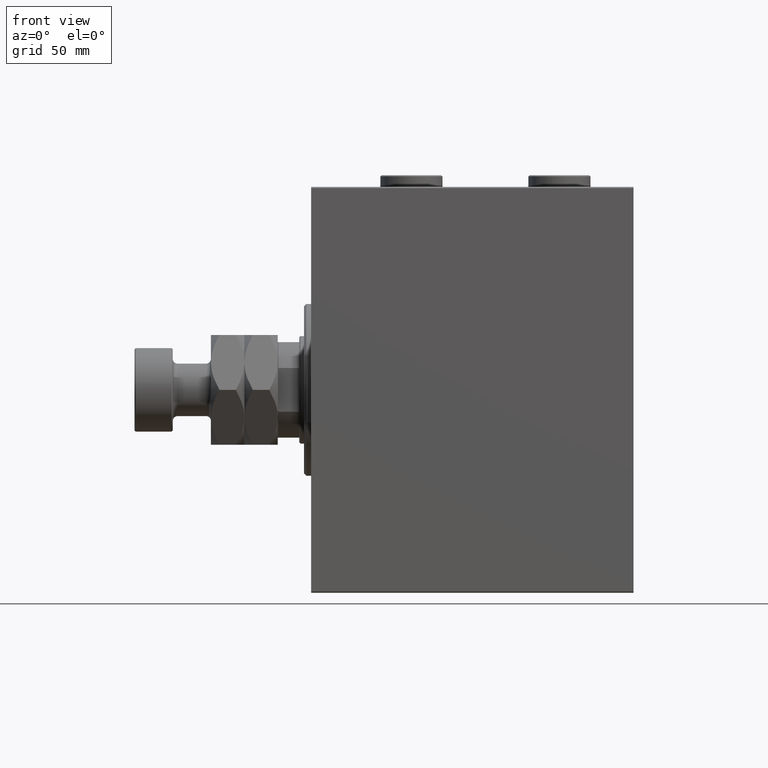
[diagram: clean part render]
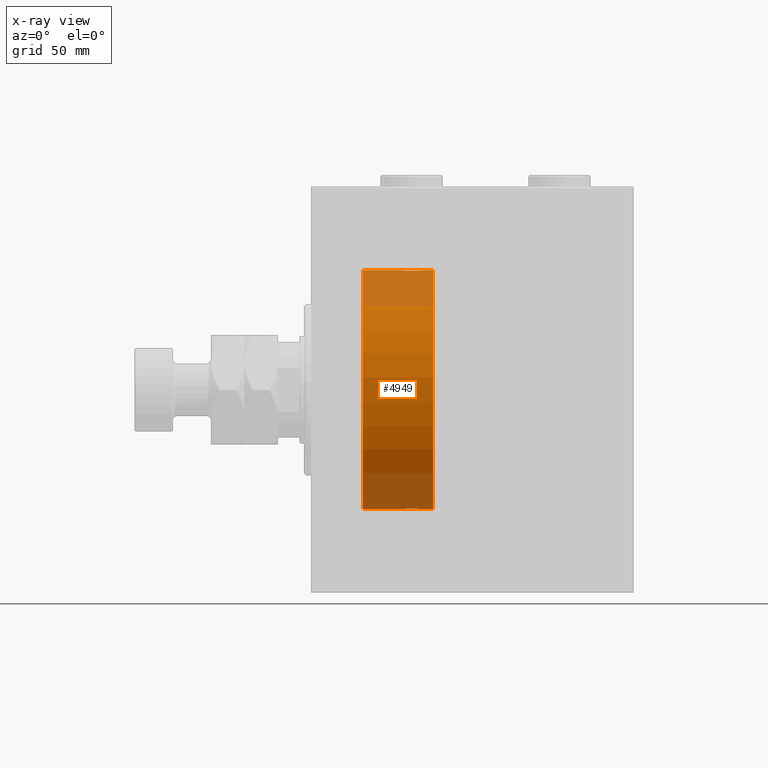
[diagram: x-ray — body ghosted, one internal face saturated and labeled with its STEP entity id]
A machine part, front view, then the same camera in x-ray: the body is ghosted and one INTERNAL B-rep face — a face not visible from any outside direction — is saturated and labeled: STEP entity #4949.
In plain terms, the highlighted cylindrical surface (partial cylindrical patch) has radius 50 mm, axis along (-1, -0, -0).
Its self-contained STEP definition (entity closure, byte-faithful):
#94 = DIRECTION ( 'NONE',  ( -1.000000000000000000, 0.000000000000000000, 0.000000000000000000 ) ) ;
#370 = CARTESIAN_POINT ( 'NONE',  ( 46.03079796155343928, -1.375411031076041901, 49.98173289062310687 ) ) ;
#804 = ORIENTED_EDGE ( 'NONE', *, *, #28610, .T. ) ;
#1781 = LINE ( 'NONE', #30676, #11615 ) ;
#2200 = CARTESIAN_POINT ( 'NONE',  ( 40.11782950515556934, -3.820681512513366851, -49.85392475515399724 ) ) ;
#2430 = CARTESIAN_POINT ( 'NONE',  ( 43.10323296034215446, -4.113647494206469801, -49.83052139214892406 ) ) ;
#2965 = CARTESIAN_POINT ( 'NONE',  ( 37.74999999999999289, -0.2773743941468536645, 50.00000000000000000 ) ) ;
#3678 = CARTESIAN_POINT ( 'NONE',  ( 43.36710647554575360, -4.033756670430847180, 49.83713703490975178 ) ) ;
#4383 = CARTESIAN_POINT ( 'NONE',  ( 44.58820214676200777, -3.382416624899779123, 49.88570010427956447 ) ) ;
#4722 = DIRECTION ( 'NONE',  ( -1.000000000000000000, -0.000000000000000000, -0.000000000000000000 ) ) ;
#4949 = ADVANCED_FACE ( 'NONE', ( #46224 ), #10426, .F. ) ;
#5121 = VERTEX_POINT ( 'NONE', #18230 ) ;
#5759 = CARTESIAN_POINT ( 'NONE',  ( 46.03272642097310552, -1.369753890039644872, -49.98188917176551627 ) ) ;
#6419 = DIRECTION ( 'NONE',  ( 0.000000000000000000, 0.000000000000000000, 1.000000000000000000 ) ) ;
#7242 = CARTESIAN_POINT ( 'NONE',  ( 45.81839248987871116, -1.886522330773416911, 49.96505190380066352 ) ) ;
#7465 = CARTESIAN_POINT ( 'NONE',  ( 46.25000000000000000, -1.456404791334935357E-15, 50.00000000000000000 ) ) ;
#7742 = CARTESIAN_POINT ( 'NONE',  ( 21.60000000000000142, 0.000000000000000000, 0.000000000000000000 ) ) ;
#7802 = LINE ( 'NONE', #36482, #17295 ) ;
#8161 = CARTESIAN_POINT ( 'NONE',  ( 38.79696438048011942, -2.807099414226279510, 49.92152599098507437 ) ) ;
#8290 = CARTESIAN_POINT ( 'NONE',  ( 51.00000000000000000, 0.000000000000000000, 50.00000000000000000 ) ) ;
#8392 = EDGE_CURVE ( 'NONE', #33266, #36976, #16502, .T. ) ;
#9306 = CARTESIAN_POINT ( 'NONE',  ( 38.31397167878049714, -2.133925816755172455, -49.95498245321557818 ) ) ;
#9543 = CARTESIAN_POINT ( 'NONE',  ( 45.68937155679385853, -2.128188802142354508, -49.95522967821975158 ) ) ;
#9761 = CARTESIAN_POINT ( 'NONE',  ( 45.37881717263738324, -2.593114840406115729, -49.93325460257640458 ) ) ;
#9834 = EDGE_CURVE ( 'NONE', #33266, #22024, #7802, .T. ) ;
#9997 = CARTESIAN_POINT ( 'NONE',  ( 39.41179785323798512, -3.382416624899766244, -49.88570010427955026 ) ) ;
#10426 = CYLINDRICAL_SURFACE ( 'NONE', #21216, 50.00000000000000000 ) ;
#10678 = CARTESIAN_POINT ( 'NONE',  ( 37.75000000000000711, 3.968053759906218216E-15, -50.00000000000000000 ) ) ;
#10689 = VECTOR ( 'NONE', #37207, 1000.000000000000000 ) ;
#11021 = CARTESIAN_POINT ( 'NONE',  ( 42.27724927037918690, -4.250219976861644433, 49.81902879621014080 ) ) ;
#11615 = VECTOR ( 'NONE', #45155, 1000.000000000000000 ) ;
#11929 = CARTESIAN_POINT ( 'NONE',  ( 46.25000000000000000, 6.123233970928975205E-15, -50.00000000000000000 ) ) ;
#12858 = CARTESIAN_POINT ( 'NONE',  ( 41.44591435119851752, -4.222816005855191790, -49.82138837911247720 ) ) ;
#13218 = EDGE_CURVE ( 'NONE', #22024, #31138, #31904, .T. ) ;
#13326 = CARTESIAN_POINT ( 'NONE',  ( 42.28395287026697247, -4.249777379711388470, -49.81906655360197789 ) ) ;
#13500 = DIRECTION ( 'NONE',  ( -1.000000000000000000, -0.000000000000000000, -0.000000000000000000 ) ) ;
#13774 = CARTESIAN_POINT ( 'NONE',  ( 45.82100581985224608, -1.881229021238117749, -49.96525240872482954 ) ) ;
#13974 = CARTESIAN_POINT ( 'NONE',  ( 51.00000000000000000, 0.000000000000000000, 0.000000000000000000 ) ) ;
#14323 = CARTESIAN_POINT ( 'NONE',  ( 44.80697831839310652, -3.203153387937322183, 49.89767833571684719 ) ) ;
#14546 = VECTOR ( 'NONE', #45191, 1000.000000000000000 ) ;
#14808 = CARTESIAN_POINT ( 'NONE',  ( 38.62118282736263097, -2.593114840406127275, 49.93325460257640458 ) ) ;
#16402 = CARTESIAN_POINT ( 'NONE',  ( 43.37333436579038448, -4.031616700143171528, -49.83731072121799599 ) ) ;
#16502 = CIRCLE ( 'NONE', #34686, 50.00000000000000000 ) ;
#16635 = CARTESIAN_POINT ( 'NONE',  ( 39.87368355124921493, -3.690299572754706325, -49.86386974736159772 ) ) ;
#16964 = AXIS2_PLACEMENT_3D ( 'NONE', #7742, #44479, #33090 ) ;
#17295 = VECTOR ( 'NONE', #4722, 1000.000000000000000 ) ;
#17316 = CARTESIAN_POINT ( 'NONE',  ( 44.59312720885954917, -3.378657745070611895, -49.88595615988430154 ) ) ;
#17474 = EDGE_CURVE ( 'NONE', #45451, #21796, #33947, .T. ) ;
#17874 = CARTESIAN_POINT ( 'NONE',  ( 38.31062844320614857, -2.128188802142364722, 49.95522967821975158 ) ) ;
#18106 = CARTESIAN_POINT ( 'NONE',  ( 45.37519984081966840, -2.597781786597462172, 49.93300953359122474 ) ) ;
#18128 = CARTESIAN_POINT ( 'NONE',  ( 21.60000000000000142, 6.123233995736766085E-15, -50.00000000000000000 ) ) ;
#18230 = CARTESIAN_POINT ( 'NONE',  ( 21.60000000000000142, 0.000000000000000000, 50.00000000000000000 ) ) ;
#18581 = CARTESIAN_POINT ( 'NONE',  ( 37.96727357902688738, -1.369753890039652200, 49.98188917176553048 ) ) ;
#18805 = CARTESIAN_POINT ( 'NONE',  ( 41.44002132304352415, -4.222042462213121183, 49.82145436824653473 ) ) ;
#19301 = ORIENTED_EDGE ( 'NONE', *, *, #21958, .T. ) ;
#19718 = CARTESIAN_POINT ( 'NONE',  ( 46.22310752799001676, -0.5531336717328987351, -49.99769193709645521 ) ) ;
#20139 = EDGE_CURVE ( 'NONE', #36976, #21796, #22967, .T. ) ;
#20649 = CARTESIAN_POINT ( 'NONE',  ( 40.63289352445425351, -4.033756670430834745, -49.83713703490973757 ) ) ;
#20881 = EDGE_LOOP ( 'NONE', ( #23328, #30254, #28799, #19301, #804, #28042, #38951, #44825 ) ) ;
#21107 = CARTESIAN_POINT ( 'NONE',  ( 39.19302168160690769, -3.203153387937303087, -49.89767833571684008 ) ) ;
#21216 = AXIS2_PLACEMENT_3D ( 'NONE', #13974, #13500, #6419 ) ;
#21796 = VERTEX_POINT ( 'NONE', #41178 ) ;
#21958 = EDGE_CURVE ( 'NONE', #31138, #45043, #45646, .T. ) ;
#22024 = VERTEX_POINT ( 'NONE', #35913 ) ;
#22129 = CARTESIAN_POINT ( 'NONE',  ( 43.88217049484444487, -3.820681512513379730, 49.85392475515401145 ) ) ;
#22369 = CARTESIAN_POINT ( 'NONE',  ( 39.40687279114044372, -3.378657745070624774, 49.88595615988428733 ) ) ;
#22591 = CARTESIAN_POINT ( 'NONE',  ( 46.22242635520781562, -0.5587117664567141651, 49.99763378604805553 ) ) ;
#22967 = LINE ( 'NONE', #8290, #10689 ) ;
#23328 = ORIENTED_EDGE ( 'NONE', *, *, #8392, .F. ) ;
#24199 = CARTESIAN_POINT ( 'NONE',  ( 38.18160751012128884, -1.886522330773408695, -49.96505190380065642 ) ) ;
#24431 = CIRCLE ( 'NONE', #16964, 50.00000000000000000 ) ;
#24440 = CARTESIAN_POINT ( 'NONE',  ( 37.96920203844656783, -1.375411031076034130, -49.98173289062310687 ) ) ;
#24512 = CARTESIAN_POINT ( 'NONE',  ( 37.75000000000000711, -2.480770331693776875E-23, 50.00000000000000000 ) ) ;
#24671 = CARTESIAN_POINT ( 'NONE',  ( 40.90262382120962315, -4.115209769591094968, -49.83039196709103891 ) ) ;
#24718 = CARTESIAN_POINT ( 'NONE',  ( 51.00000000000000000, 0.000000000000000000, 0.000000000000000000 ) ) ;
#24897 = EDGE_CURVE ( 'NONE', #45451, #5121, #1781, .T. ) ;
#24899 = CARTESIAN_POINT ( 'NONE',  ( 51.00000000000000000, 0.000000000000000000, 50.00000000000000000 ) ) ;
#25458 = CARTESIAN_POINT ( 'NONE',  ( 41.71604712973302043, -4.249777379711404457, 49.81906655360197789 ) ) ;
#27297 = CARTESIAN_POINT ( 'NONE',  ( 37.88750298919665482, -1.108337267831482009, -49.98846998601261760 ) ) ;
#27764 = CARTESIAN_POINT ( 'NONE',  ( 41.72275072962082021, -4.250219976861628446, -49.81902879621016211 ) ) ;
#28042 = ORIENTED_EDGE ( 'NONE', *, *, #24897, .F. ) ;
#28610 = EDGE_CURVE ( 'NONE', #45043, #5121, #24431, .T. ) ;
#28776 = CARTESIAN_POINT ( 'NONE',  ( 46.25000000000001421, -0.2808785465865648034, 50.00000000000001421 ) ) ;
#28799 = ORIENTED_EDGE ( 'NONE', *, *, #13218, .T. ) ;
#29256 = CARTESIAN_POINT ( 'NONE',  ( 40.62666563420964394, -4.031616700143185739, 49.83731072121799599 ) ) ;
#30254 = ORIENTED_EDGE ( 'NONE', *, *, #9834, .T. ) ;
#30404 = CARTESIAN_POINT ( 'NONE',  ( 46.11431913306007147, -1.101350136471736407, -49.98862054280446898 ) ) ;
#30676 = CARTESIAN_POINT ( 'NONE',  ( 51.00000000000000000, 0.000000000000000000, 50.00000000000000000 ) ) ;
#30711 = CARTESIAN_POINT ( 'NONE',  ( 51.00000000000000000, 6.123233995736766085E-15, -50.00000000000000000 ) ) ;
#31096 = CARTESIAN_POINT ( 'NONE',  ( 37.77757364479219149, -0.5587117664567073927, -49.99763378604802000 ) ) ;
#31138 = VERTEX_POINT ( 'NONE', #10678 ) ;
#31904 = B_SPLINE_CURVE_WITH_KNOTS ( 'NONE', 3,
 ( #11929, #37749, #19718, #30404, #5759, #13774, #9543, #9761, #35592, #42729, #17316, #34666, #38682, #16402, #2430, #46264, #13326, #27764, #12858, #24671, #20649, #2200, #16635, #9997, #21107, #35131, #42256, #9306, #24199, #24440, #27297, #31096, #41793, #34898 ),
 .UNSPECIFIED., .F., .F.,
 ( 4, 2, 2, 2, 2, 2, 2, 2, 2, 2, 2, 2, 2, 2, 2, 2, 4 ),
 ( 0.01329343152928757349, 0.01412407817529635554, 0.01495472482130513932, 0.01578537146731392310, 0.01661601811332270515, 0.01744666475933148719, 0.01827731140534026924, 0.01910795805134905129, 0.01993860469735783680, 0.02076925134336661885, 0.02159989798937540090, 0.02243054463538418294, 0.02326119128139296499, 0.02409183792740174704, 0.02492248457341052909, 0.02575313121941931460, 0.02658377786542809665 ),
 .UNSPECIFIED. ) ;
#32337 = CARTESIAN_POINT ( 'NONE',  ( 44.12631644875080639, -3.690299572754719204, 49.86386974736159772 ) ) ;
#32571 = CARTESIAN_POINT ( 'NONE',  ( 45.68602832121950286, -2.133925816755179117, 49.95498245321557818 ) ) ;
#33052 = CARTESIAN_POINT ( 'NONE',  ( 40.89676703965783133, -4.113647494206481348, 49.83052139214890985 ) ) ;
#33090 = DIRECTION ( 'NONE',  ( 0.000000000000000000, 0.000000000000000000, 1.000000000000000000 ) ) ;
#33266 = VERTEX_POINT ( 'NONE', #35435 ) ;
#33280 = CARTESIAN_POINT ( 'NONE',  ( 42.55408564880149669, -4.222816005855207777, 49.82138837911247009 ) ) ;
#33713 = CARTESIAN_POINT ( 'NONE',  ( 37.75000000000000711, -2.480770331693776875E-23, 50.00000000000000000 ) ) ;
#33947 = B_SPLINE_CURVE_WITH_KNOTS ( 'NONE', 3,
 ( #24512, #2965, #35427, #46335, #18581, #43748, #17874, #14808, #8161, #36849, #22369, #43520, #43974, #29256, #33052, #18805, #25458, #11021, #33280, #46813, #3678, #22129, #32337, #4383, #14323, #39951, #18106, #32571, #7242, #370, #40648, #22591, #28776, #7465 ),
 .UNSPECIFIED., .F., .F.,
 ( 4, 2, 2, 2, 2, 2, 2, 2, 2, 2, 2, 2, 2, 2, 2, 2, 4 ),
 ( 0.01329343152928754573, 0.01412407817529632778, 0.01495472482130510983, 0.01578537146731389187, 0.01661601811332267392, 0.01744666475933145597, 0.01827731140534023802, 0.01910795805134902006, 0.01993860469735780558, 0.02076925134336658763, 0.02159989798937536967, 0.02243054463538415519, 0.02326119128139293724, 0.02409183792740172275, 0.02492248457341050133, 0.02575313121941928685, 0.02658377786542807236 ),
 .UNSPECIFIED. ) ;
#34666 = CARTESIAN_POINT ( 'NONE',  ( 44.13136399446156588, -3.687400765141517045, -49.86408552998297239 ) ) ;
#34686 = AXIS2_PLACEMENT_3D ( 'NONE', #24718, #94, #46787 ) ;
#34898 = CARTESIAN_POINT ( 'NONE',  ( 37.75000000000000711, 3.968053759906218216E-15, -50.00000000000000000 ) ) ;
#35131 = CARTESIAN_POINT ( 'NONE',  ( 38.80078072038718062, -2.811461347331092320, -49.92127983148853332 ) ) ;
#35427 = CARTESIAN_POINT ( 'NONE',  ( 37.77689247200999745, -0.5531336717329046193, 49.99769193709644099 ) ) ;
#35435 = CARTESIAN_POINT ( 'NONE',  ( 51.00000000000000000, 6.123233995736766085E-15, -50.00000000000000000 ) ) ;
#35592 = CARTESIAN_POINT ( 'NONE',  ( 45.20303561951989479, -2.807099414226266632, -49.92152599098507437 ) ) ;
#35913 = CARTESIAN_POINT ( 'NONE',  ( 46.25000000000000000, 6.123233970928975205E-15, -50.00000000000000000 ) ) ;
#36482 = CARTESIAN_POINT ( 'NONE',  ( 51.00000000000000000, 6.123233995736766085E-15, -50.00000000000000000 ) ) ;
#36849 = CARTESIAN_POINT ( 'NONE',  ( 39.18846933484581285, -3.199146701881674382, 49.89793607725460589 ) ) ;
#36976 = VERTEX_POINT ( 'NONE', #24899 ) ;
#37207 = DIRECTION ( 'NONE',  ( -1.000000000000000000, -0.000000000000000000, -0.000000000000000000 ) ) ;
#37749 = CARTESIAN_POINT ( 'NONE',  ( 46.25000000000000711, -0.2773743941468470586, -50.00000000000000711 ) ) ;
#38682 = CARTESIAN_POINT ( 'NONE',  ( 43.88744739392799943, -3.818052230167706007, -49.85412671291931730 ) ) ;
#38951 = ORIENTED_EDGE ( 'NONE', *, *, #17474, .T. ) ;
#39951 = CARTESIAN_POINT ( 'NONE',  ( 45.19921927961281938, -2.811461347331110083, 49.92127983148853332 ) ) ;
#40648 = CARTESIAN_POINT ( 'NONE',  ( 46.11249701080335228, -1.108337267831491335, 49.98846998601261049 ) ) ;
#41178 = CARTESIAN_POINT ( 'NONE',  ( 46.25000000000000000, -1.456404791334935357E-15, 50.00000000000000000 ) ) ;
#41793 = CARTESIAN_POINT ( 'NONE',  ( 37.75000000000001421, -0.2808785465865586972, -50.00000000000001421 ) ) ;
#42256 = CARTESIAN_POINT ( 'NONE',  ( 38.62480015918035292, -2.597781786597455067, -49.93300953359122474 ) ) ;
#42729 = CARTESIAN_POINT ( 'NONE',  ( 44.81153066515420136, -3.199146701881660171, -49.89793607725462010 ) ) ;
#43520 = CARTESIAN_POINT ( 'NONE',  ( 39.86863600553844833, -3.687400765141529924, 49.86408552998297949 ) ) ;
#43748 = CARTESIAN_POINT ( 'NONE',  ( 38.17899418014774682, -1.881229021238125743, 49.96525240872482954 ) ) ;
#43974 = CARTESIAN_POINT ( 'NONE',  ( 40.11255260607202899, -3.818052230167721106, 49.85412671291931730 ) ) ;
#44479 = DIRECTION ( 'NONE',  ( -1.000000000000000000, 0.000000000000000000, 0.000000000000000000 ) ) ;
#44825 = ORIENTED_EDGE ( 'NONE', *, *, #20139, .F. ) ;
#45043 = VERTEX_POINT ( 'NONE', #18128 ) ;
#45155 = DIRECTION ( 'NONE',  ( -1.000000000000000000, -0.000000000000000000, -0.000000000000000000 ) ) ;
#45191 = DIRECTION ( 'NONE',  ( -1.000000000000000000, -0.000000000000000000, -0.000000000000000000 ) ) ;
#45451 = VERTEX_POINT ( 'NONE', #33713 ) ;
#45646 = LINE ( 'NONE', #30711, #14546 ) ;
#46224 = FACE_OUTER_BOUND ( 'NONE', #20881, .T. ) ;
#46264 = CARTESIAN_POINT ( 'NONE',  ( 42.55997867695646164, -4.222042462213109637, -49.82145436824654183 ) ) ;
#46335 = CARTESIAN_POINT ( 'NONE',  ( 37.88568086693992143, -1.101350136471743291, 49.98862054280449030 ) ) ;
#46787 = DIRECTION ( 'NONE',  ( 0.000000000000000000, 0.000000000000000000, 1.000000000000000000 ) ) ;
#46813 = CARTESIAN_POINT ( 'NONE',  ( 43.09737617879037685, -4.115209769591108291, 49.83039196709103891 ) ) ;